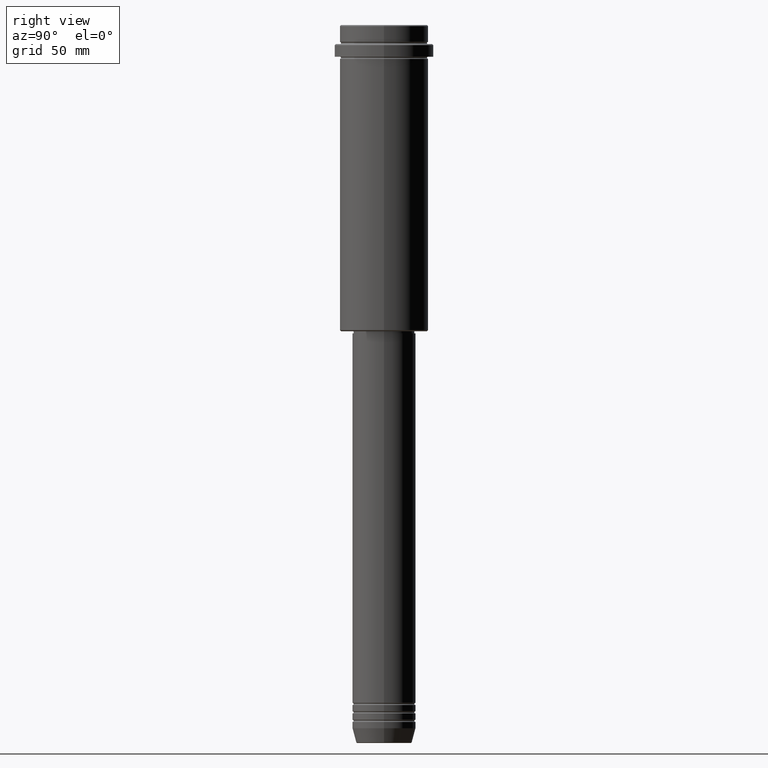
[diagram: clean part render]
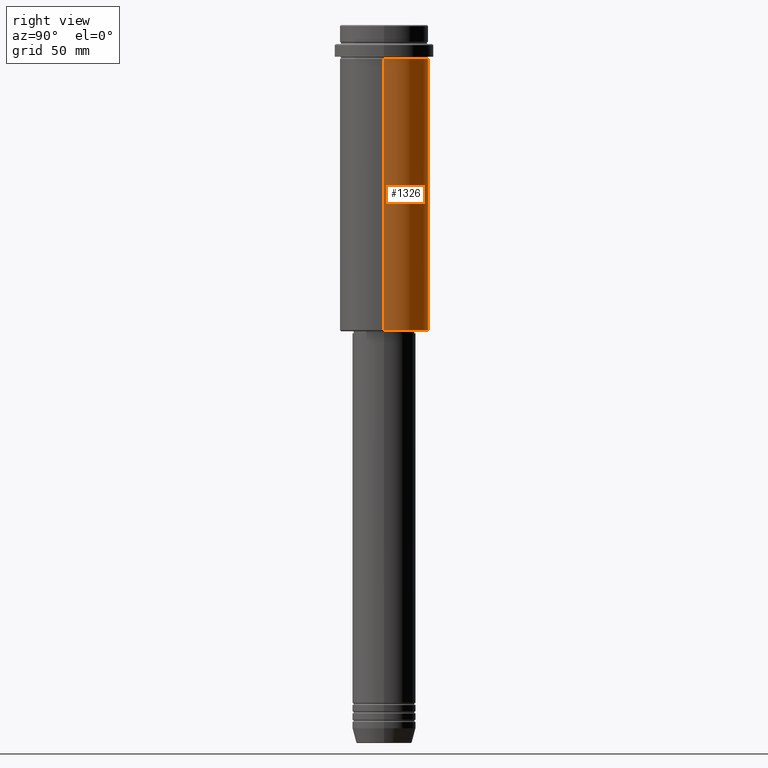
[diagram: same view with one face highlighted and labeled with its STEP entity id]
A machine part, right view. The second image highlights one B-rep face of the part: STEP entity #1326.
In plain terms, the highlighted cylindrical surface (partial cylindrical patch) has radius 21 mm, axis along (-0, -0, 1).
Its self-contained STEP definition (entity closure, byte-faithful):
#9 = ORIENTED_EDGE ( 'NONE', *, *, #530, .F. ) ;
#76 = CARTESIAN_POINT ( 'NONE',  ( -20.99999999999999645, 2.571758278209441267E-15, -144.5000000000000568 ) ) ;
#96 = VERTEX_POINT ( 'NONE', #1133 ) ;
#124 = FACE_OUTER_BOUND ( 'NONE', #1307, .T. ) ;
#222 = CARTESIAN_POINT ( 'NONE',  ( 0.000000000000000000, 0.000000000000000000, 0.000000000000000000 ) ) ;
#299 = VERTEX_POINT ( 'NONE', #1064 ) ;
#301 = DIRECTION ( 'NONE',  ( -0.000000000000000000, -0.000000000000000000, 1.000000000000000000 ) ) ;
#314 = EDGE_CURVE ( 'NONE', #299, #410, #1180, .T. ) ;
#361 = CARTESIAN_POINT ( 'NONE',  ( 0.000000000000000000, 0.000000000000000000, -16.00000000000000355 ) ) ;
#410 = VERTEX_POINT ( 'NONE', #1103 ) ;
#426 = AXIS2_PLACEMENT_3D ( 'NONE', #222, #1009, #769 ) ;
#516 = LINE ( 'NONE', #1055, #910 ) ;
#530 = EDGE_CURVE ( 'NONE', #410, #96, #1352, .T. ) ;
#568 = CYLINDRICAL_SURFACE ( 'NONE', #426, 20.99999999999999645 ) ;
#575 = DIRECTION ( 'NONE',  ( 1.000000000000000000, 0.000000000000000000, 0.000000000000000000 ) ) ;
#724 = DIRECTION ( 'NONE',  ( -0.000000000000000000, -0.000000000000000000, 1.000000000000000000 ) ) ;
#769 = DIRECTION ( 'NONE',  ( 1.000000000000000000, 0.000000000000000000, 0.000000000000000000 ) ) ;
#783 = VERTEX_POINT ( 'NONE', #76 ) ;
#839 = VECTOR ( 'NONE', #301, 1000.000000000000000 ) ;
#846 = DIRECTION ( 'NONE',  ( -1.000000000000000000, 0.000000000000000000, 0.000000000000000000 ) ) ;
#851 = AXIS2_PLACEMENT_3D ( 'NONE', #361, #1124, #575 ) ;
#910 = VECTOR ( 'NONE', #1358, 1000.000000000000000 ) ;
#935 = AXIS2_PLACEMENT_3D ( 'NONE', #948, #724, #846 ) ;
#948 = CARTESIAN_POINT ( 'NONE',  ( 0.000000000000000000, 0.000000000000000000, -144.5000000000000568 ) ) ;
#1009 = DIRECTION ( 'NONE',  ( -0.000000000000000000, -0.000000000000000000, 1.000000000000000000 ) ) ;
#1055 = CARTESIAN_POINT ( 'NONE',  ( -20.99999999999999645, 2.571758278209441267E-15, 0.000000000000000000 ) ) ;
#1064 = CARTESIAN_POINT ( 'NONE',  ( 20.99999999999999645, 0.000000000000000000, -144.5000000000000568 ) ) ;
#1095 = EDGE_CURVE ( 'NONE', #299, #783, #1179, .T. ) ;
#1103 = CARTESIAN_POINT ( 'NONE',  ( 20.99999999999999645, 0.000000000000000000, -16.00000000000000355 ) ) ;
#1124 = DIRECTION ( 'NONE',  ( -0.000000000000000000, -0.000000000000000000, 1.000000000000000000 ) ) ;
#1133 = CARTESIAN_POINT ( 'NONE',  ( -20.99999999999999645, 2.571758278209441267E-15, -16.00000000000000355 ) ) ;
#1143 = ORIENTED_EDGE ( 'NONE', *, *, #1095, .T. ) ;
#1153 = EDGE_CURVE ( 'NONE', #783, #96, #516, .T. ) ;
#1179 = CIRCLE ( 'NONE', #935, 20.99999999999999645 ) ;
#1180 = LINE ( 'NONE', #1282, #839 ) ;
#1203 = ORIENTED_EDGE ( 'NONE', *, *, #1153, .T. ) ;
#1218 = ORIENTED_EDGE ( 'NONE', *, *, #314, .F. ) ;
#1282 = CARTESIAN_POINT ( 'NONE',  ( 20.99999999999999645, 0.000000000000000000, 0.000000000000000000 ) ) ;
#1307 = EDGE_LOOP ( 'NONE', ( #1143, #1203, #9, #1218 ) ) ;
#1326 = ADVANCED_FACE ( 'NONE', ( #124 ), #568, .T. ) ;
#1352 = CIRCLE ( 'NONE', #851, 20.99999999999999645 ) ;
#1358 = DIRECTION ( 'NONE',  ( -0.000000000000000000, -0.000000000000000000, 1.000000000000000000 ) ) ;